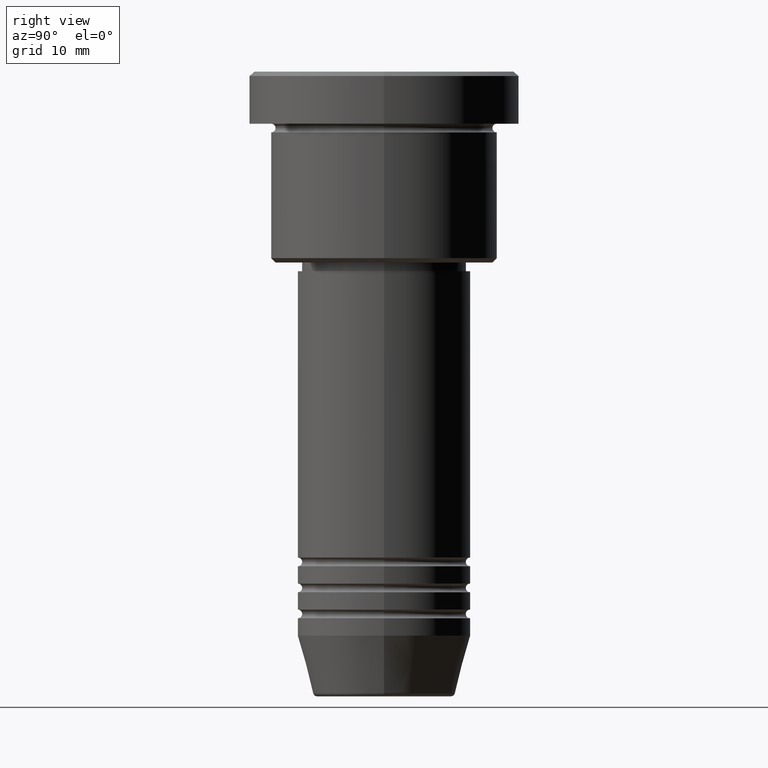
[diagram: clean part render]
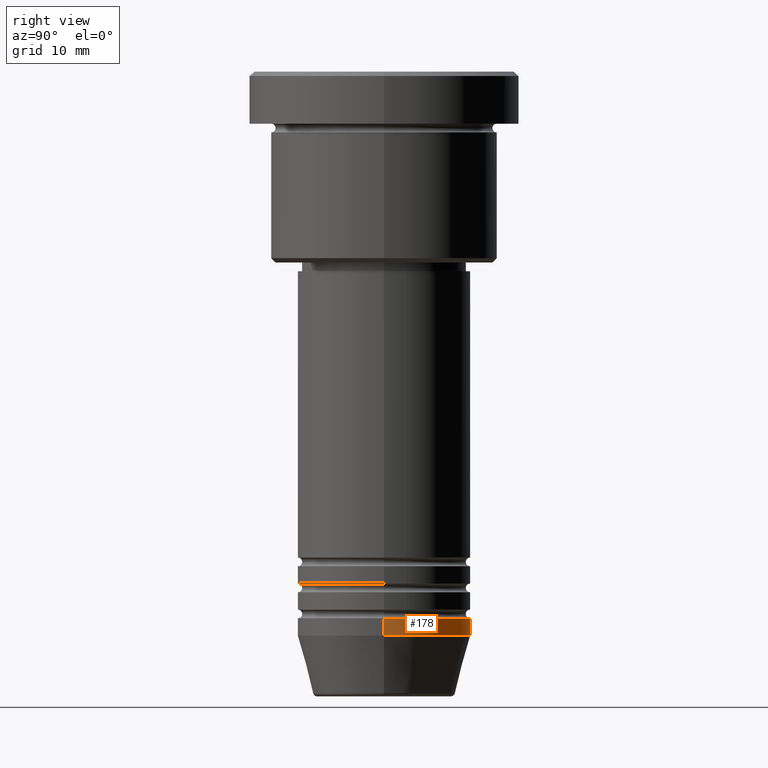
[diagram: same view with one face highlighted and labeled with its STEP entity id]
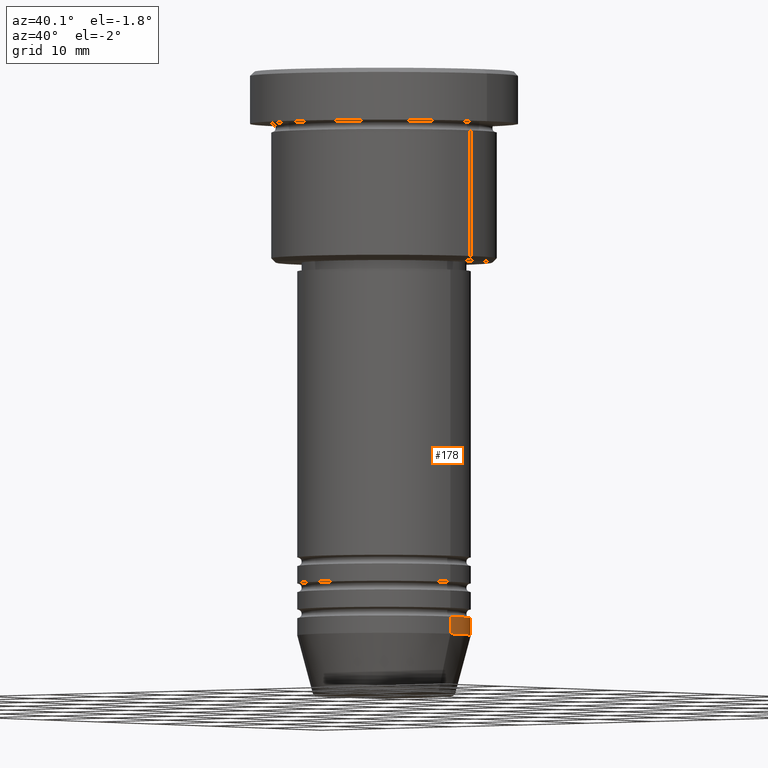
[diagram: same view with one face highlighted and labeled with its STEP entity id]
A machine part, right view. The second image highlights one B-rep face of the part: STEP entity #178.
A second angle (auxiliary view) of the same face is appended — the face is thin or edge-on in the first view.
In plain terms, the highlighted cylindrical surface (partial cylindrical patch) has radius 10 mm, axis along (-0, -0, 1).
Its self-contained STEP definition (entity closure, byte-faithful):
#28 = DIRECTION ( 'NONE',  ( 1.000000000000000000, 0.000000000000000000, 0.000000000000000000 ) ) ;
#44 = DIRECTION ( 'NONE',  ( 1.000000000000000000, 0.000000000000000000, 0.000000000000000000 ) ) ;
#75 = AXIS2_PLACEMENT_3D ( 'NONE', #1043, #517, #232 ) ;
#112 = CARTESIAN_POINT ( 'NONE',  ( 0.000000000000000000, 0.000000000000000000, 0.000000000000000000 ) ) ;
#114 = CARTESIAN_POINT ( 'NONE',  ( -10.00000000000000000, 1.224646799147353256E-15, -63.00000000000000000 ) ) ;
#121 = CYLINDRICAL_SURFACE ( 'NONE', #732, 10.00000000000000000 ) ;
#124 = VERTEX_POINT ( 'NONE', #320 ) ;
#178 = ADVANCED_FACE ( 'NONE', ( #1109 ), #121, .T. ) ;
#182 = DIRECTION ( 'NONE',  ( -0.000000000000000000, -0.000000000000000000, 1.000000000000000000 ) ) ;
#200 = EDGE_CURVE ( 'NONE', #710, #124, #578, .T. ) ;
#206 = VECTOR ( 'NONE', #182, 1000.000000000000000 ) ;
#214 = DIRECTION ( 'NONE',  ( -0.000000000000000000, -0.000000000000000000, 1.000000000000000000 ) ) ;
#232 = DIRECTION ( 'NONE',  ( 1.000000000000000000, 0.000000000000000000, 0.000000000000000000 ) ) ;
#277 = CARTESIAN_POINT ( 'NONE',  ( -10.00000000000000000, 1.224646799147353256E-15, 0.000000000000000000 ) ) ;
#298 = EDGE_CURVE ( 'NONE', #710, #526, #491, .T. ) ;
#320 = CARTESIAN_POINT ( 'NONE',  ( 10.00000000000000000, 0.000000000000000000, -63.00000000000000000 ) ) ;
#463 = DIRECTION ( 'NONE',  ( -0.000000000000000000, -0.000000000000000000, 1.000000000000000000 ) ) ;
#468 = AXIS2_PLACEMENT_3D ( 'NONE', #475, #214, #44 ) ;
#473 = CARTESIAN_POINT ( 'NONE',  ( 10.00000000000000000, 0.000000000000000000, -65.00000000000000000 ) ) ;
#475 = CARTESIAN_POINT ( 'NONE',  ( 0.000000000000000000, 0.000000000000000000, -65.00000000000000000 ) ) ;
#491 = CIRCLE ( 'NONE', #468, 10.00000000000000000 ) ;
#517 = DIRECTION ( 'NONE',  ( -0.000000000000000000, -0.000000000000000000, 1.000000000000000000 ) ) ;
#526 = VERTEX_POINT ( 'NONE', #976 ) ;
#578 = LINE ( 'NONE', #1026, #1101 ) ;
#611 = ORIENTED_EDGE ( 'NONE', *, *, #200, .F. ) ;
#660 = ORIENTED_EDGE ( 'NONE', *, *, #1170, .F. ) ;
#701 = EDGE_LOOP ( 'NONE', ( #883, #995, #660, #611 ) ) ;
#710 = VERTEX_POINT ( 'NONE', #473 ) ;
#731 = VERTEX_POINT ( 'NONE', #114 ) ;
#732 = AXIS2_PLACEMENT_3D ( 'NONE', #112, #837, #28 ) ;
#837 = DIRECTION ( 'NONE',  ( -0.000000000000000000, -0.000000000000000000, 1.000000000000000000 ) ) ;
#883 = ORIENTED_EDGE ( 'NONE', *, *, #298, .T. ) ;
#936 = CIRCLE ( 'NONE', #75, 10.00000000000000000 ) ;
#976 = CARTESIAN_POINT ( 'NONE',  ( -10.00000000000000000, 1.224646799147353256E-15, -65.00000000000000000 ) ) ;
#983 = EDGE_CURVE ( 'NONE', #526, #731, #985, .T. ) ;
#985 = LINE ( 'NONE', #277, #206 ) ;
#995 = ORIENTED_EDGE ( 'NONE', *, *, #983, .T. ) ;
#1026 = CARTESIAN_POINT ( 'NONE',  ( 10.00000000000000000, 0.000000000000000000, 0.000000000000000000 ) ) ;
#1043 = CARTESIAN_POINT ( 'NONE',  ( 0.000000000000000000, 0.000000000000000000, -63.00000000000000000 ) ) ;
#1101 = VECTOR ( 'NONE', #463, 1000.000000000000000 ) ;
#1109 = FACE_OUTER_BOUND ( 'NONE', #701, .T. ) ;
#1170 = EDGE_CURVE ( 'NONE', #124, #731, #936, .T. ) ;